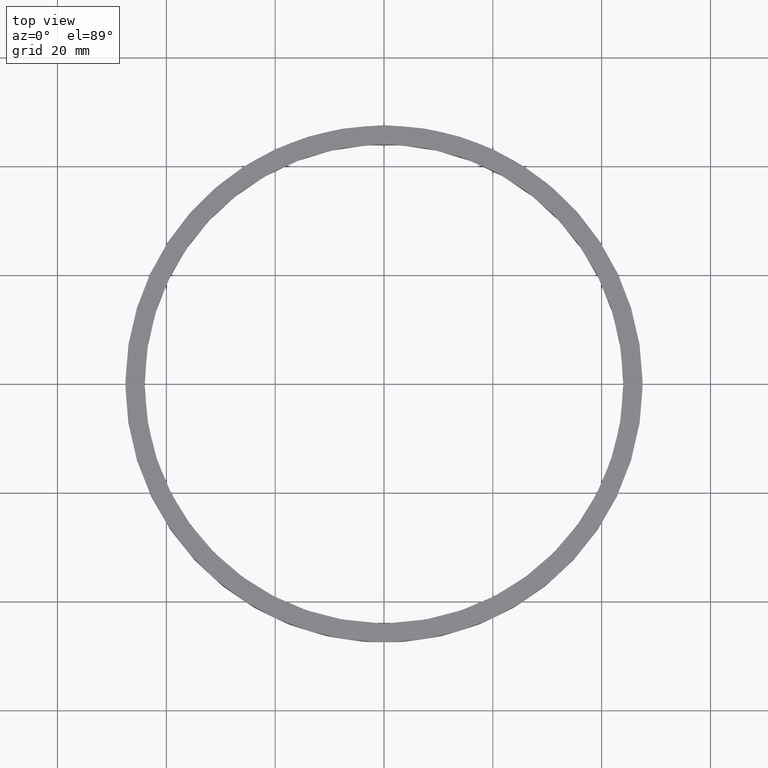
[diagram: clean part render]
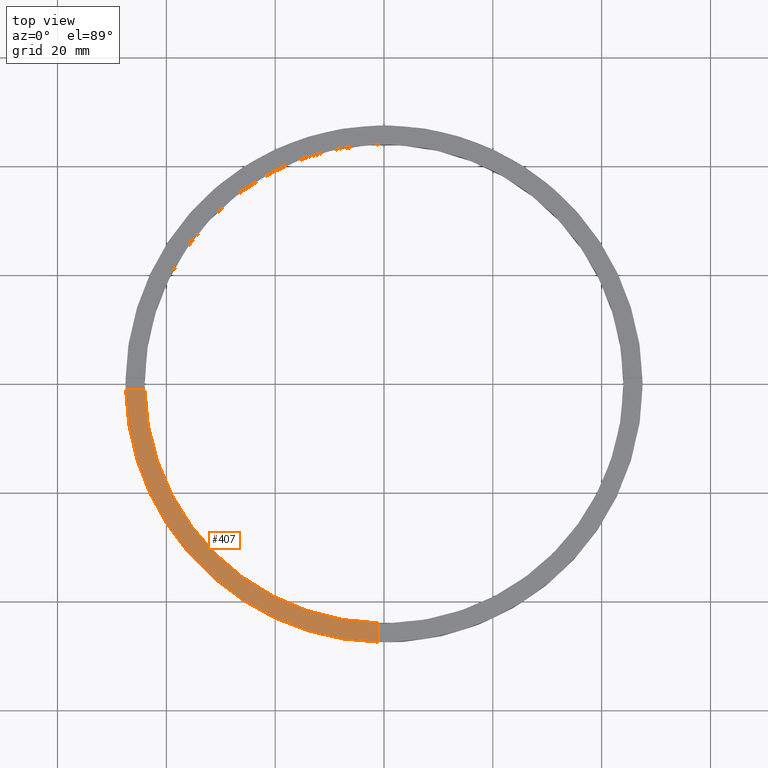
[diagram: same view with one face highlighted and labeled with its STEP entity id]
A machine part, top view. The second image highlights one B-rep face of the part: STEP entity #407.
In plain terms, the highlighted planar face has unit normal (0, 0, 1).
Its self-contained STEP definition (entity closure, byte-faithful):
#4 = LINE ( 'NONE', #137, #772 ) ;
#11 = CARTESIAN_POINT ( 'NONE',  ( -1.000000000000158096, -43.98863489584553577, 4.500000000000000000 ) ) ;
#61 = AXIS2_PLACEMENT_3D ( 'NONE', #119, #185, #77 ) ;
#73 = AXIS2_PLACEMENT_3D ( 'NONE', #219, #546, #534 ) ;
#77 = DIRECTION ( 'NONE',  ( 1.000000000000000000, 0.000000000000000000, 0.000000000000000000 ) ) ;
#119 = CARTESIAN_POINT ( 'NONE',  ( 0.000000000000000000, 0.000000000000000000, 4.500000000000000000 ) ) ;
#137 = CARTESIAN_POINT ( 'NONE',  ( -37.50000000000019185, -1.000000000000028644, 4.500000000000000000 ) ) ;
#170 = VERTEX_POINT ( 'NONE', #11 ) ;
#185 = DIRECTION ( 'NONE',  ( 0.000000000000000000, 0.000000000000000000, 1.000000000000000000 ) ) ;
#187 = ORIENTED_EDGE ( 'NONE', *, *, #282, .F. ) ;
#205 = VERTEX_POINT ( 'NONE', #321 ) ;
#213 = VERTEX_POINT ( 'NONE', #521 ) ;
#218 = VERTEX_POINT ( 'NONE', #660 ) ;
#219 = CARTESIAN_POINT ( 'NONE',  ( 0.000000000000000000, 0.000000000000000000, 4.500000000000000000 ) ) ;
#267 = VECTOR ( 'NONE', #511, 1000.000000000000000 ) ;
#274 = CIRCLE ( 'NONE', #73, 47.50000000000000711 ) ;
#282 = EDGE_CURVE ( 'NONE', #170, #218, #517, .T. ) ;
#321 = CARTESIAN_POINT ( 'NONE',  ( -47.48947251760120736, -1.000000000000030642, 4.500000000000000000 ) ) ;
#351 = EDGE_CURVE ( 'NONE', #205, #213, #4, .T. ) ;
#399 = EDGE_CURVE ( 'NONE', #205, #218, #274, .T. ) ;
#402 = CIRCLE ( 'NONE', #61, 44.00000000000000000 ) ;
#407 = ADVANCED_FACE ( 'NONE', ( #547 ), #597, .T. ) ;
#424 = CARTESIAN_POINT ( 'NONE',  ( -1.000000000000158762, -37.50000000000018474, 4.500000000000000000 ) ) ;
#439 = ORIENTED_EDGE ( 'NONE', *, *, #351, .F. ) ;
#485 = EDGE_LOOP ( 'NONE', ( #187, #678, #439, #724 ) ) ;
#511 = DIRECTION ( 'NONE',  ( 1.301042606982605074E-16, -1.000000000000000000, 0.000000000000000000 ) ) ;
#517 = LINE ( 'NONE', #424, #267 ) ;
#521 = CARTESIAN_POINT ( 'NONE',  ( -43.98863489584553577, -1.000000000000029976, 4.500000000000000000 ) ) ;
#534 = DIRECTION ( 'NONE',  ( 1.000000000000000000, 0.000000000000000000, 0.000000000000000000 ) ) ;
#546 = DIRECTION ( 'NONE',  ( 0.000000000000000000, 0.000000000000000000, 1.000000000000000000 ) ) ;
#547 = FACE_OUTER_BOUND ( 'NONE', #485, .T. ) ;
#552 = CARTESIAN_POINT ( 'NONE',  ( 0.000000000000000000, 0.000000000000000000, 4.500000000000000000 ) ) ;
#554 = AXIS2_PLACEMENT_3D ( 'NONE', #552, #586, #601 ) ;
#586 = DIRECTION ( 'NONE',  ( 0.000000000000000000, 0.000000000000000000, 1.000000000000000000 ) ) ;
#590 = DIRECTION ( 'NONE',  ( 1.000000000000000000, 1.951563910473907735E-16, -0.000000000000000000 ) ) ;
#597 = PLANE ( 'NONE',  #554 ) ;
#601 = DIRECTION ( 'NONE',  ( 1.000000000000000000, 0.000000000000000000, -0.000000000000000000 ) ) ;
#612 = EDGE_CURVE ( 'NONE', #213, #170, #402, .T. ) ;
#660 = CARTESIAN_POINT ( 'NONE',  ( -1.000000000000157652, -47.48947251760120736, 4.500000000000000000 ) ) ;
#678 = ORIENTED_EDGE ( 'NONE', *, *, #612, .F. ) ;
#724 = ORIENTED_EDGE ( 'NONE', *, *, #399, .T. ) ;
#772 = VECTOR ( 'NONE', #590, 1000.000000000000000 ) ;